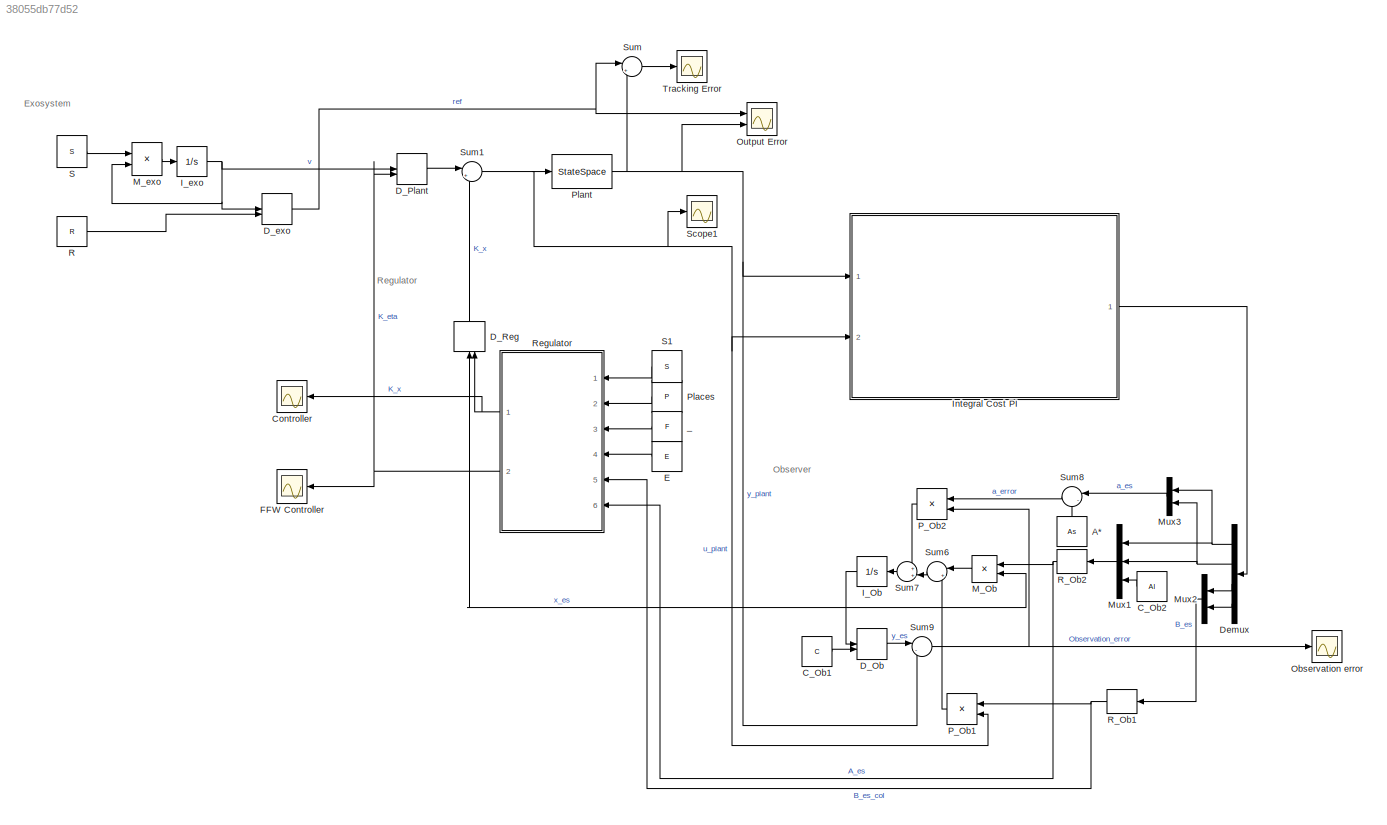
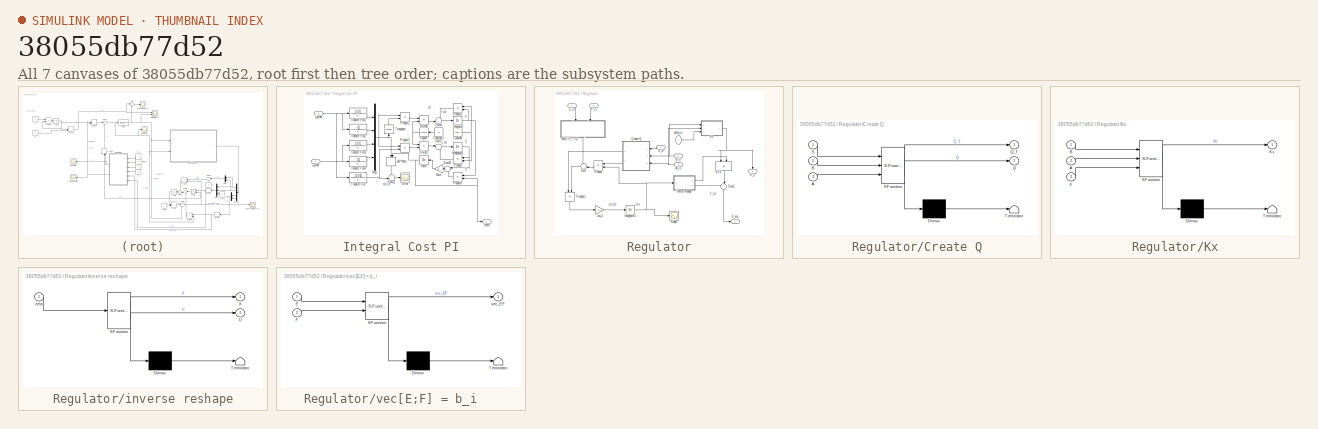
[diagram: thumbnail index - all 7 canvases of the model, root first then tree order]
MODEL slx_38055db77d52
KIND model
CONFIG AbsTol = auto
CONFIG EnableMultiTasking = off
CONFIG FixedStep = auto
CONFIG MaxStep = 0.01
CONFIG MinStep = auto
CONFIG RelTol = 1e-3
CONFIG SampleTimeConstraint = Unconstrained
CONFIG Solver = ode23tb
CONFIG SolverName = ode23tb
CONFIG StartTime = 0.0
CONFIG StopTime = 10
BLOCK [Constant] A* 
  Value = As
BLOCK [Constant] C_Ob1
  Value = C
BLOCK [Constant] C_Ob2
  Value = Al
BLOCK [Scope] Controller
  NumInputPorts = 1
  Ports = [1]
  ScopeSpecificationString = Simulink.scopes.TimeScopeBlockCfg('CurrentConfiguration', extmgr.ConfigurationSet(extmgr.Configuration('Core','General UI',true),extmgr.Configuration('Core','Source UI',true),extmgr.Configuration('Sources','WiredSimulink',true,'DataLoggingVariableName','ScopeData2'),extmgr.Configuration('Visuals','Time Domain',true,'SerializedDisplays',{struct('MinYLimReal','-13.59056','MaxYLimReal','4.60929','YLa...<+1496ch>
BLOCK [DotProduct] D_Ob
  OutDataTypeStr = Inherit: Inherit via internal rule
BLOCK [DotProduct] D_Plant
  OutDataTypeStr = Inherit: Inherit via internal rule
BLOCK [DotProduct] D_Reg 
  OutDataTypeStr = Inherit: Inherit via internal rule
BLOCK [DotProduct] D_exo
  OutDataTypeStr = Inherit: Inherit via internal rule
BLOCK [Demux] Demux
  DisplayOption = bar
  Ports = [1, 4]
BLOCK [Constant] E
  Value = E
BLOCK [Scope] FFW Controller
  NumInputPorts = 1
  Ports = [1]
  ScopeSpecificationString = Simulink.scopes.TimeScopeBlockCfg('CurrentConfiguration', extmgr.ConfigurationSet(extmgr.Configuration('Core','General UI',true),extmgr.Configuration('Core','Source UI',true),extmgr.Configuration('Sources','WiredSimulink',true,'DataLoggingVariableName','ScopeData1'),extmgr.Configuration('Visuals','Time Domain',true,'SerializedDisplays',{struct('MinYLimReal','-1.94161','MaxYLimReal','11.32685','YLa...<+1518ch>
BLOCK [Integrator] I_Ob
  InitialCondition = X0
  Ports = [1, 1]
BLOCK [Integrator] I_exo
  InitialCondition = V0
  Ports = [1, 1]
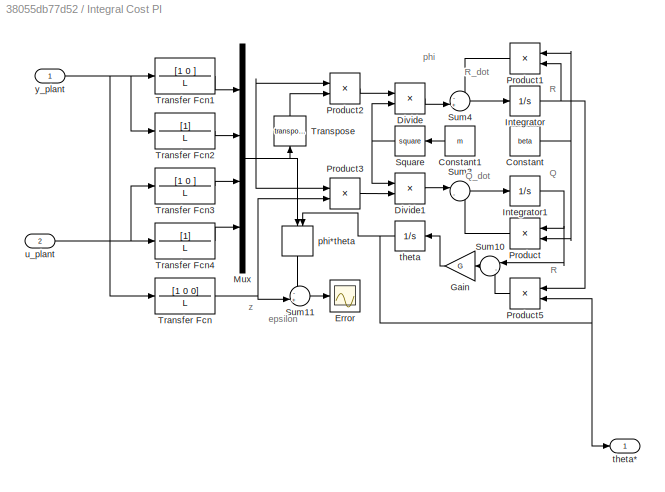
BLOCK [SubSystem] Integral Cost PI
  Ports = [2, 1]
  RequestExecContextInheritance = off
  Variant = off
BLOCK [Constant] Integral Cost PI/Constant
  Value = beta
BLOCK [Constant] Integral Cost PI/Constant1
  Value = m
BLOCK [Product] Integral Cost PI/Divide
  InputSameDT = off
  Inputs = */
  OutDataTypeStr = Inherit: Inherit via internal rule
  Ports = [2, 1]
  RndMeth = Floor
  SaturateOnIntegerOverflow = off
BLOCK [Product] Integral Cost PI/Divide1
  InputSameDT = off
  Inputs = /*
  OutDataTypeStr = Inherit: Inherit via internal rule
  Ports = [2, 1]
  RndMeth = Floor
  SaturateOnIntegerOverflow = off
BLOCK [Scope] Integral Cost PI/Error
  NumInputPorts = 1
  Ports = [1]
  ScopeSpecificationString = Simulink.scopes.TimeScopeBlockCfg('CurrentConfiguration', extmgr.ConfigurationSet(extmgr.Configuration('Core','General UI',true),extmgr.Configuration('Core','Source UI',true),extmgr.Configuration('Sources','WiredSimulink',true,'DataLoggingVariableName','ScopeData3'),extmgr.Configuration('Visuals','Time Domain',true,'SerializedDisplays',{struct('MinYLimReal','-0.53606','MaxYLimReal','0.26796','YLab...<+1393ch>
BLOCK [Gain] Integral Cost PI/Gain
  Gain = G
  OutDataTypeStr = Inherit: Inherit via internal rule
  ParamDataTypeStr = Inherit: Inherit via internal rule
  SaturateOnIntegerOverflow = off
BLOCK [Integrator] Integral Cost PI/Integrator
  Ports = [1, 1]
BLOCK [Integrator] Integral Cost PI/Integrator1
  Ports = [1, 1]
BLOCK [Mux] Integral Cost PI/Mux
  DisplayOption = bar
  Ports = [4, 1]
BLOCK [Product] Integral Cost PI/Product
  InputSameDT = off
  OutDataTypeStr = Inherit: Inherit via internal rule
  Ports = [2, 1]
  RndMeth = Floor
  SaturateOnIntegerOverflow = off
BLOCK [Product] Integral Cost PI/Product1
  InputSameDT = off
  OutDataTypeStr = Inherit: Inherit via internal rule
  Ports = [2, 1]
  RndMeth = Floor
  SaturateOnIntegerOverflow = off
BLOCK [Product] Integral Cost PI/Product2
  InputSameDT = off
  Inputs = **
  Multiplication = Matrix(*)
  OutDataTypeStr = Inherit: Inherit via internal rule
  Ports = [2, 1]
  RndMeth = Floor
  SaturateOnIntegerOverflow = off
BLOCK [Product] Integral Cost PI/Product3
  InputSameDT = off
  Inputs = **
  Multiplication = Matrix(*)
  OutDataTypeStr = Inherit: Inherit via internal rule
  Ports = [2, 1]
  RndMeth = Floor
  SaturateOnIntegerOverflow = off
BLOCK [Product] Integral Cost PI/Product5
  InputSameDT = off
  Multiplication = Matrix(*)
  OutDataTypeStr = Inherit: Inherit via internal rule
  Ports = [2, 1]
  RndMeth = Floor
  SaturateOnIntegerOverflow = off
BLOCK [Math] Integral Cost PI/Square
  Operator = square
  Ports = [1, 1]
BLOCK [Sum] Integral Cost PI/Sum10
  IconShape = round
  InputSameDT = off
  Inputs = |--
  OutDataTypeStr = Inherit: Inherit via internal rule
  Ports = [2, 1]
  SaturateOnIntegerOverflow = off
BLOCK [Sum] Integral Cost PI/Sum11
  IconShape = round
  InputSameDT = off
  Inputs = -+|
  OutDataTypeStr = Inherit: Inherit via internal rule
  Ports = [2, 1]
  SaturateOnIntegerOverflow = off
BLOCK [Sum] Integral Cost PI/Sum3
  IconShape = round
  InputSameDT = off
  Inputs = |--
  OutDataTypeStr = Inherit: Inherit via internal rule
  Ports = [2, 1]
  SaturateOnIntegerOverflow = off
BLOCK [Sum] Integral Cost PI/Sum4
  IconShape = round
  InputSameDT = off
  Inputs = -+|
  OutDataTypeStr = Inherit: Inherit via internal rule
  Ports = [2, 1]
  SaturateOnIntegerOverflow = off
BLOCK [TransferFcn] Integral Cost PI/Transfer Fcn
  Denominator = L
  Numerator = [1 0 0]
BLOCK [TransferFcn] Integral Cost PI/Transfer Fcn1
  Denominator = L
  Numerator = [1 0 ]
BLOCK [TransferFcn] Integral Cost PI/Transfer Fcn2
  Denominator = L
BLOCK [TransferFcn] Integral Cost PI/Transfer Fcn3
  Denominator = L
  Numerator = [1 0 ]
BLOCK [TransferFcn] Integral Cost PI/Transfer Fcn4
  Denominator = L
BLOCK [Math] Integral Cost PI/Transpose
  Operator = transpose
  Ports = [1, 1]
BLOCK [DotProduct] Integral Cost PI/phi*theta
  OutDataTypeStr = Inherit: Inherit via internal rule
BLOCK [Integrator] Integral Cost PI/theta
  InitialCondition = t0
  Ports = [1, 1]
BLOCK [Outport] Integral Cost PI/theta*
  IconDisplay = Port number
BLOCK [Inport] Integral Cost PI/u_plant
  IconDisplay = Port number
  Port = 2
BLOCK [Inport] Integral Cost PI/y_plant
  IconDisplay = Port number
BLOCK [Product] M_Ob
  InputSameDT = off
  Multiplication = Matrix(*)
  OutDataTypeStr = Inherit: Inherit via internal rule
  Ports = [2, 1]
  RndMeth = Floor
  SaturateOnIntegerOverflow = off
BLOCK [Product] M_exo
  InputSameDT = off
  Inputs = **
  Multiplication = Matrix(*)
  OutDataTypeStr = Inherit: Inherit via internal rule
  Ports = [2, 1]
  RndMeth = Floor
  SaturateOnIntegerOverflow = off
BLOCK [Mux] Mux1
  DisplayOption = bar
  Inputs = 3
  Ports = [3, 1]
BLOCK [Mux] Mux2
  DisplayOption = bar
  Inputs = 2
  Ports = [2, 1]
BLOCK [Mux] Mux3
  DisplayOption = bar
  Inputs = 2
  Ports = [2, 1]
BLOCK [Scope] Observation error
  NumInputPorts = 1
  Ports = [1]
  ScopeSpecificationString = Simulink.scopes.TimeScopeBlockCfg('CurrentConfiguration', extmgr.ConfigurationSet(extmgr.Configuration('Core','General UI',true),extmgr.Configuration('Core','Source UI',true),extmgr.Configuration('Sources','WiredSimulink',true,'DataLoggingVariableName','ScopeData4'),extmgr.Configuration('Visuals','Time Domain',true,'SerializedDisplays',{struct('MinYLimReal','-1.13854','MaxYLimReal','0.24684','YLab...<+1496ch>
BLOCK [Scope] Output Error
  NumInputPorts = 2
  Ports = [2]
  ScopeSpecificationString = Simulink.scopes.TimeScopeBlockCfg('CurrentConfiguration', extmgr.ConfigurationSet(extmgr.Configuration('Core','General UI',true),extmgr.Configuration('Core','Source UI',true),extmgr.Configuration('Sources','WiredSimulink',true,'DataLoggingVariableName','ScopeData1'),extmgr.Configuration('Visuals','Time Domain',true,'SerializedDisplays',{struct('MinYLimReal','-2.76026','MaxYLimReal','2.52892','YLab...<+1490ch>
BLOCK [Product] P_Ob1
  InputSameDT = off
  OutDataTypeStr = Inherit: Inherit via internal rule
  Ports = [2, 1]
  RndMeth = Floor
  SaturateOnIntegerOverflow = off
BLOCK [Product] P_Ob2
  InputSameDT = off
  OutDataTypeStr = Inherit: Inherit via internal rule
  Ports = [2, 1]
  RndMeth = Floor
  SaturateOnIntegerOverflow = off
BLOCK [Constant] Places
  Value = P
  VectorParams1D = off
BLOCK [StateSpace] Plant
  A = A
  B = B
  C = C
  D = D
  Ports = [1, 1]
  X0 = 0
BLOCK [Constant] R
  Value = R
  VectorParams1D = off
BLOCK [Reshape] R_Ob1
  OutputDimensionality = Customize
  OutputDimensions = [2,1]
  Ports = [1, 1]
BLOCK [Reshape] R_Ob2
  OutputDimensionality = Customize
  OutputDimensions = [2,2]
  Ports = [1, 1]
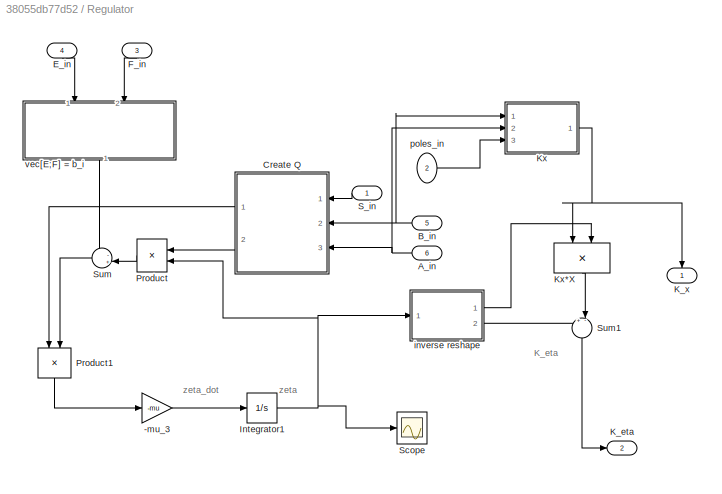
BLOCK [SubSystem] Regulator
  Ports = [6, 2]
  RequestExecContextInheritance = off
  Variant = off
BLOCK [Gain] Regulator/-mu_3
  Gain = -mu
  OutDataTypeStr = Inherit: Inherit via internal rule
  ParamDataTypeStr = Inherit: Inherit via internal rule
  SaturateOnIntegerOverflow = off
BLOCK [Inport] Regulator/A_in
  IconDisplay = Port number
  Port = 6
BLOCK [Inport] Regulator/B_in
  IconDisplay = Port number
  Port = 5
BLOCK [SubSystem] Regulator/Create Q
  ErrorFcn = Stateflow.Translate.translate
  PermitHierarchicalResolution = ExplicitOnly
  Ports = [3, 2]
  RequestExecContextInheritance = off
  SFBlockType = MATLAB Function
  TreatAsAtomicUnit = on
  Variant = off
BLOCK [Demux] Regulator/Create Q/ Demux 
  Outputs = 1
  Ports = [1, 1]
BLOCK [S-Function] Regulator/Create Q/ SFunction 
  EnableBusSupport = on
  FunctionName = sf_sfun
  PortCounts = [3 3]
  Ports = [3, 3]
  SFcnIsStateOwnerBlock = off
  SFunctionDeploymentMode = off
  Tag = Stateflow S-Function Adaptive_Output_Regulator_2016_IC 3
BLOCK [Terminator] Regulator/Create Q/ Terminator 
BLOCK [Inport] Regulator/Create Q/A
  IconDisplay = Port number
  Port = 3
BLOCK [Inport] Regulator/Create Q/B
  IconDisplay = Port number
  Port = 2
BLOCK [Outport] Regulator/Create Q/Q
  IconDisplay = Port number
  Port = 2
BLOCK [Outport] Regulator/Create Q/Q_T
  IconDisplay = Port number
BLOCK [Inport] Regulator/Create Q/S
  IconDisplay = Port number
BLOCK [Inport] Regulator/E_in
  IconDisplay = Port number
  Port = 4
BLOCK [Inport] Regulator/F_in
  IconDisplay = Port number
  Port = 3
BLOCK [Integrator] Regulator/Integrator1
  InitialCondition = Z0
  Ports = [1, 1]
BLOCK [Outport] Regulator/K_eta
  IconDisplay = Port number
  Port = 2
BLOCK [Outport] Regulator/K_x
  IconDisplay = Port number
BLOCK [SubSystem] Regulator/Kx
  ErrorFcn = Stateflow.Translate.translate
  PermitHierarchicalResolution = ExplicitOnly
  Ports = [3, 1]
  RequestExecContextInheritance = off
  SFBlockType = MATLAB Function
  TreatAsAtomicUnit = on
  Variant = off
BLOCK [Product] Regulator/Kx*X
  InputSameDT = off
  Inputs = **
  Multiplication = Matrix(*)
  OutDataTypeStr = Inherit: Inherit via internal rule
  Ports = [2, 1]
  RndMeth = Floor
  SaturateOnIntegerOverflow = off
BLOCK [Demux] Regulator/Kx/ Demux 
  Outputs = 1
  Ports = [1, 1]
BLOCK [S-Function] Regulator/Kx/ SFunction 
  EnableBusSupport = on
  FunctionName = sf_sfun
  PortCounts = [3 2]
  Ports = [3, 2]
  SFcnIsStateOwnerBlock = off
  SFunctionDeploymentMode = off
  Tag = Stateflow S-Function Adaptive_Output_Regulator_2016_IC 4
BLOCK [Terminator] Regulator/Kx/ Terminator 
BLOCK [Inport] Regulator/Kx/A
  IconDisplay = Port number
  Port = 2
BLOCK [Inport] Regulator/Kx/B
  IconDisplay = Port number
BLOCK [Outport] Regulator/Kx/Kx
  IconDisplay = Port number
BLOCK [Inport] Regulator/Kx/p
  IconDisplay = Port number
  Port = 3
BLOCK [Product] Regulator/Product
  InputSameDT = off
  Multiplication = Matrix(*)
  OutDataTypeStr = Inherit: Inherit via internal rule
  Ports = [2, 1]
  RndMeth = Floor
  SaturateOnIntegerOverflow = off
BLOCK [Product] Regulator/Product1
  InputSameDT = off
  Multiplication = Matrix(*)
  OutDataTypeStr = Inherit: Inherit via internal rule
  Ports = [2, 1]
  RndMeth = Floor
  SaturateOnIntegerOverflow = off
BLOCK [Inport] Regulator/S_in
  IconDisplay = Port number
BLOCK [Scope] Regulator/Scope
  NumInputPorts = 1
  Ports = [1]
  ScopeSpecificationString = Simulink.scopes.TimeScopeBlockCfg('CurrentConfiguration', extmgr.ConfigurationSet(extmgr.Configuration('Core','General UI',true),extmgr.Configuration('Core','Source UI',true),extmgr.Configuration('Sources','WiredSimulink',true,'DataLoggingVariableName','ScopeData5'),extmgr.Configuration('Visuals','Time Domain',true,'SerializedDisplays',{struct('MinYLimReal','-6.39246','MaxYLimReal','11.27124','YLa...<+1395ch>
BLOCK [Sum] Regulator/Sum
  IconShape = round
  InputSameDT = off
  Inputs = -+|
  OutDataTypeStr = Inherit: Inherit via internal rule
  Ports = [2, 1]
  SaturateOnIntegerOverflow = off
BLOCK [Sum] Regulator/Sum1
  IconShape = round
  InputSameDT = off
  Inputs = +-|
  OutDataTypeStr = Inherit: Inherit via internal rule
  Ports = [2, 1]
  SaturateOnIntegerOverflow = off
BLOCK [SubSystem] Regulator/inverse reshape
  ErrorFcn = Stateflow.Translate.translate
  PermitHierarchicalResolution = ExplicitOnly
  Ports = [1, 2]
  RequestExecContextInheritance = off
  SFBlockType = MATLAB Function
  TreatAsAtomicUnit = on
  Variant = off
BLOCK [Demux] Regulator/inverse reshape/ Demux 
  Outputs = 1
  Ports = [1, 1]
BLOCK [S-Function] Regulator/inverse reshape/ SFunction 
  EnableBusSupport = on
  FunctionName = sf_sfun
  PortCounts = [1 3]
  Ports = [1, 3]
  SFcnIsStateOwnerBlock = off
  SFunctionDeploymentMode = off
  Tag = Stateflow S-Function Adaptive_Output_Regulator_2016_IC 5
BLOCK [Terminator] Regulator/inverse reshape/ Terminator 
BLOCK [Outport] Regulator/inverse reshape/U
  IconDisplay = Port number
  Port = 2
BLOCK [Outport] Regulator/inverse reshape/X
  IconDisplay = Port number
BLOCK [Inport] Regulator/inverse reshape/zeta
  IconDisplay = Port number
BLOCK [Inport] Regulator/poles_in
  IconDisplay = Port number
  Port = 2
BLOCK [SubSystem] Regulator/vec[E;F] = b_i   
  ErrorFcn = Stateflow.Translate.translate
  PermitHierarchicalResolution = ExplicitOnly
  Ports = [2, 1]
  RequestExecContextInheritance = off
  SFBlockType = MATLAB Function
  TreatAsAtomicUnit = on
  Variant = off
BLOCK [Demux] Regulator/vec[E;F] = b_i   / Demux 
  Outputs = 1
  Ports = [1, 1]
BLOCK [S-Function] Regulator/vec[E;F] = b_i   / SFunction 
  EnableBusSupport = on
  FunctionName = sf_sfun
  PortCounts = [2 2]
  Ports = [2, 2]
  SFcnIsStateOwnerBlock = off
  SFunctionDeploymentMode = off
  Tag = Stateflow S-Function Adaptive_Output_Regulator_2016_IC 6
BLOCK [Terminator] Regulator/vec[E;F] = b_i   / Terminator 
BLOCK [Inport] Regulator/vec[E;F] = b_i   /E
  IconDisplay = Port number
BLOCK [Inport] Regulator/vec[E;F] = b_i   /F
  IconDisplay = Port number
  Port = 2
BLOCK [Outport] Regulator/vec[E;F] = b_i   /vec_EF
  IconDisplay = Port number
BLOCK [Constant] S
  Value = S
BLOCK [Constant] S1
  Value = S
BLOCK [Scope] Scope1
  NumInputPorts = 1
  Ports = [1]
  ScopeSpecificationString = Simulink.scopes.TimeScopeBlockCfg('CurrentConfiguration', extmgr.ConfigurationSet(extmgr.Configuration('Core','General UI',true),extmgr.Configuration('Core','Source UI',true),extmgr.Configuration('Sources','WiredSimulink',true,'DataLoggingVariableName','ScopeData4'),extmgr.Configuration('Visuals','Time Domain',true,'SerializedDisplays',{struct('MinYLimReal','-19.2594','MaxYLimReal','14.95572','YLa...<+1393ch>
BLOCK [Sum] Sum
  IconShape = round
  InputSameDT = off
  Inputs = |+-
  OutDataTypeStr = Inherit: Inherit via internal rule
  Ports = [2, 1]
  SaturateOnIntegerOverflow = off
BLOCK [Sum] Sum1
  IconShape = round
  InputSameDT = off
  Inputs = |++
  OutDataTypeStr = Inherit: Inherit via internal rule
  Ports = [2, 1]
  SaturateOnIntegerOverflow = off
BLOCK [Sum] Sum6
  IconShape = round
  InputSameDT = off
  Inputs = |++
  OutDataTypeStr = Inherit: Inherit via internal rule
  Ports = [2, 1]
  SaturateOnIntegerOverflow = off
BLOCK [Sum] Sum7
  IconShape = round
  InputSameDT = off
  Inputs = ++|
  OutDataTypeStr = Inherit: Inherit via internal rule
  Ports = [2, 1]
  SaturateOnIntegerOverflow = off
BLOCK [Sum] Sum8
  IconShape = round
  InputSameDT = off
  Inputs = |-+
  OutDataTypeStr = Inherit: Inherit via internal rule
  Ports = [2, 1]
  SaturateOnIntegerOverflow = off
BLOCK [Sum] Sum9
  IconShape = round
  InputSameDT = off
  Inputs = |-+
  OutDataTypeStr = Inherit: Inherit via internal rule
  Ports = [2, 1]
  SaturateOnIntegerOverflow = off
BLOCK [Scope] Tracking Error
  NumInputPorts = 1
  Ports = [1]
  ScopeSpecificationString = Simulink.scopes.TimeScopeBlockCfg('CurrentConfiguration', extmgr.ConfigurationSet(extmgr.Configuration('Core','General UI',true),extmgr.Configuration('Core','Source UI',true),extmgr.Configuration('Sources','WiredSimulink',true,'DataLoggingVariableName','ScopeData6'),extmgr.Configuration('Visuals','Time Domain',true,'SerializedDisplays',{struct('MinYLimReal','-0.97164','MaxYLimReal','2.24685','YLab...<+1436ch>
BLOCK [Constant] _
  Value = F
  VectorParams1D = off
ANNOTATION (root): Exosystem
ANNOTATION (root): Observer
ANNOTATION (root): Regulator
ANNOTATION Integral Cost PI: Q
ANNOTATION Integral Cost PI: Q_dot
ANNOTATION Integral Cost PI: R
ANNOTATION Integral Cost PI: R_dot
ANNOTATION Integral Cost PI: epsilon
ANNOTATION Integral Cost PI: phi
ANNOTATION Integral Cost PI: z
ANNOTATION Regulator: K_eta
ANNOTATION Regulator: zeta
ANNOTATION Regulator: zeta_dot
LINE A* :1 -> Sum8:2
LINE C_Ob1:1 -> D_Ob:2
LINE C_Ob2:1 -> Mux1:3
LINE D_Ob:1 -> Sum9:1
LINE D_Plant:1 -> Sum1:1
LINE D_Reg :1 -> Sum1:2
NET D_exo:1 -> Output Error:1, Sum:1
NET Demux:1 -> Mux1:1, Mux3:1
NET Demux:2 -> Mux1:2, Mux3:2
LINE Demux:3 -> Mux2:1
LINE Demux:4 -> Mux2:2
LINE E:1 -> Regulator:4
NET I_Ob:1 -> D_Ob:1, D_Reg :1, M_Ob:2
NET I_exo:1 -> D_Plant:1, D_exo:1, M_exo:2
LINE Integral Cost PI/Constant1:1 -> Integral Cost PI/Square:1
NET Integral Cost PI/Constant:1 -> Integral Cost PI/Product1:1, Integral Cost PI/Product:2
LINE Integral Cost PI/Divide1:1 -> Integral Cost PI/Sum3:1
LINE Integral Cost PI/Divide:1 -> Integral Cost PI/Sum4:2
LINE Integral Cost PI/Gain:1 -> Integral Cost PI/theta:1
NET Integral Cost PI/Integrator1:1 -> Integral Cost PI/Product:1, Integral Cost PI/Sum10:1
NET Integral Cost PI/Integrator:1 -> Integral Cost PI/Product1:2, Integral Cost PI/Product5:1
NET Integral Cost PI/Mux:1 -> Integral Cost PI/Product2:1, Integral Cost PI/Product3:1, Integral Cost PI/Transpose:1, Integral Cost PI/phi*theta:1
LINE Integral Cost PI/Product1:1 -> Integral Cost PI/Sum4:1
LINE Integral Cost PI/Product2:1 -> Integral Cost PI/Divide:1
LINE Integral Cost PI/Product3:1 -> Integral Cost PI/Divide1:2
LINE Integral Cost PI/Product5:1 -> Integral Cost PI/Sum10:2
LINE Integral Cost PI/Product:1 -> Integral Cost PI/Sum3:2
NET Integral Cost PI/Square:1 -> Integral Cost PI/Divide1:1, Integral Cost PI/Divide:2
LINE Integral Cost PI/Sum10:1 -> Integral Cost PI/Gain:1
LINE Integral Cost PI/Sum11:1 -> Integral Cost PI/Error:1
LINE Integral Cost PI/Sum3:1 -> Integral Cost PI/Integrator1:1
LINE Integral Cost PI/Sum4:1 -> Integral Cost PI/Integrator:1
LINE Integral Cost PI/Transfer Fcn1:1 -> Integral Cost PI/Mux:1
LINE Integral Cost PI/Transfer Fcn2:1 -> Integral Cost PI/Mux:2
LINE Integral Cost PI/Transfer Fcn3:1 -> Integral Cost PI/Mux:3
LINE Integral Cost PI/Transfer Fcn4:1 -> Integral Cost PI/Mux:4
NET Integral Cost PI/Transfer Fcn:1 -> Integral Cost PI/Product3:2, Integral Cost PI/Sum11:2
LINE Integral Cost PI/Transpose:1 -> Integral Cost PI/Product2:2
LINE Integral Cost PI/phi*theta:1 -> Integral Cost PI/Sum11:1
NET Integral Cost PI/theta:1 -> Integral Cost PI/Product5:2, Integral Cost PI/phi*theta:2, Integral Cost PI/theta*:1
NET Integral Cost PI/u_plant:1 -> Integral Cost PI/Transfer Fcn3:1, Integral Cost PI/Transfer Fcn4:1
NET Integral Cost PI/y_plant:1 -> Integral Cost PI/Transfer Fcn1:1, Integral Cost PI/Transfer Fcn2:1, Integral Cost PI/Transfer Fcn:1
LINE Integral Cost PI:1 -> Demux:1
LINE M_Ob:1 -> Sum6:1
LINE M_exo:1 -> I_exo:1
LINE Mux1:1 -> R_Ob2:1
LINE Mux2:1 -> R_Ob1:1
LINE Mux3:1 -> Sum8:1
LINE P_Ob1:1 -> Sum6:2
LINE P_Ob2:1 -> Sum7:1
LINE Places:1 -> Regulator:2
NET Plant:1 -> Integral Cost PI:1, Output Error:2, Sum9:2, Sum:2
LINE R:1 -> D_exo:2
NET R_Ob1:1 -> P_Ob1:1, Regulator:5
NET R_Ob2:1 -> M_Ob:1, Regulator:6
LINE Regulator/-mu_3:1 -> Regulator/Integrator1:1
NET Regulator/A_in:1 -> Regulator/Create Q:3, Regulator/Kx:2
NET Regulator/B_in:1 -> Regulator/Create Q:2, Regulator/Kx:1
LINE Regulator/Create Q:1 -> Regulator/Product1:1
LINE Regulator/Create Q:2 -> Regulator/Product:1
LINE Regulator/E_in:1 -> Regulator/vec[E;F] = b_i   :1
LINE Regulator/F_in:1 -> Regulator/vec[E;F] = b_i   :2
NET Regulator/Integrator1:1 -> Regulator/Product:2, Regulator/Scope:1, Regulator/inverse reshape:1
LINE Regulator/Kx*X:1 -> Regulator/Sum1:2
NET Regulator/Kx:1 -> Regulator/K_x:1, Regulator/Kx*X:1
LINE Regulator/Product1:1 -> Regulator/-mu_3:1
LINE Regulator/Product:1 -> Regulator/Sum:2
LINE Regulator/S_in:1 -> Regulator/Create Q:1
LINE Regulator/Sum1:1 -> Regulator/K_eta:1
LINE Regulator/Sum:1 -> Regulator/Product1:2
LINE Regulator/inverse reshape:1 -> Regulator/Kx*X:2
LINE Regulator/inverse reshape:2 -> Regulator/Sum1:1
LINE Regulator/poles_in:1 -> Regulator/Kx:3
LINE Regulator/vec[E;F] = b_i   :1 -> Regulator/Sum:1
NET Regulator:1 -> Controller:1, D_Reg :2
NET Regulator:2 -> D_Plant:2, FFW Controller:1
LINE S1:1 -> Regulator:1
LINE S:1 -> M_exo:1
NET Sum1:1 -> Integral Cost PI:2, P_Ob1:2, Plant:1, Scope1:1
LINE Sum6:1 -> Sum7:2
LINE Sum7:1 -> I_Ob:1
LINE Sum8:1 -> P_Ob2:1
NET Sum9:1 -> Observation error:1, P_Ob2:2
LINE Sum:1 -> Tracking Error:1
LINE _:1 -> Regulator:3
note: NET lines group one-source signal fan-out (src -> all destinations, sorted); 1:1 wires keep LINE
CHART Regulator/Create Q states=1 transitions=1
  STATE_LABEL 'eML_blk_kernel()'
  STATE_LABEL "SCRIPT:\nfunction [Q_T,Q]= fcn(S,B,A)\n[Sc,Sr]=size(S);\nI_ni = [eye(2) zeros(2,1);zeros(1,3)];\nI_q = eye(Sc);\nsysmatrix = [A B;1 0 0];\n\nQ = kron(S.',I_ni)-kron(I_q,sysmatrix);\nQ_T = Q.';\nend"
CHART Regulator/Kx states=1 transitions=1
  STATE_LABEL 'eML_blk_kernel()'
  STATE_LABEL "SCRIPT:\nfunction Kx = fcn(B,A,p)\n\ncoder.extrinsic('place')\nKx = zeros(1,2);\nKx = place(A,-B,p);\n\n"
CHART Regulator/inverse reshape states=1 transitions=1
  STATE_LABEL 'eML_blk_kernel()'
  STATE_LABEL 'SCRIPT:\nfunction [X,U] = fcn(zeta)\nn = 4;\ntmp = reshape(zeta,3,n);\nX = tmp(1:2,1:n);\nU = tmp(3,:);\nend\n'
CHART Regulator/vec[E;F]
= b_i    states=1 transitions=1
  STATE_LABEL 'eML_blk_kernel()'
  STATE_LABEL 'SCRIPT:\nfunction vec_EF = fcn(E,F)\n[Ec,Er] = size(E);\n[Fc,Fr] = size(F);\nvec_EF = reshape([E;F],Ec*Er+Fc*Fr,1);\nend'
